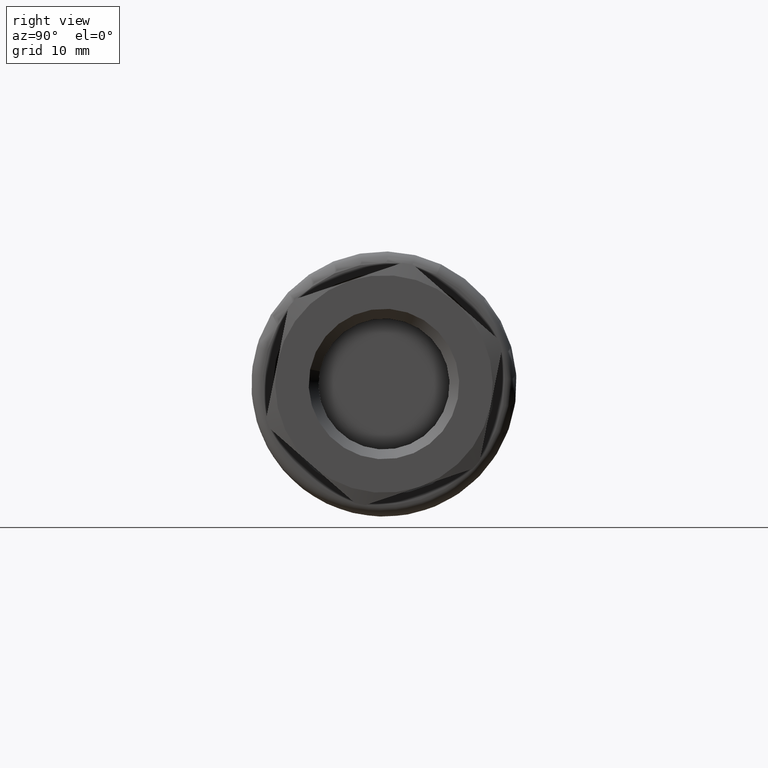
[diagram: clean part render]
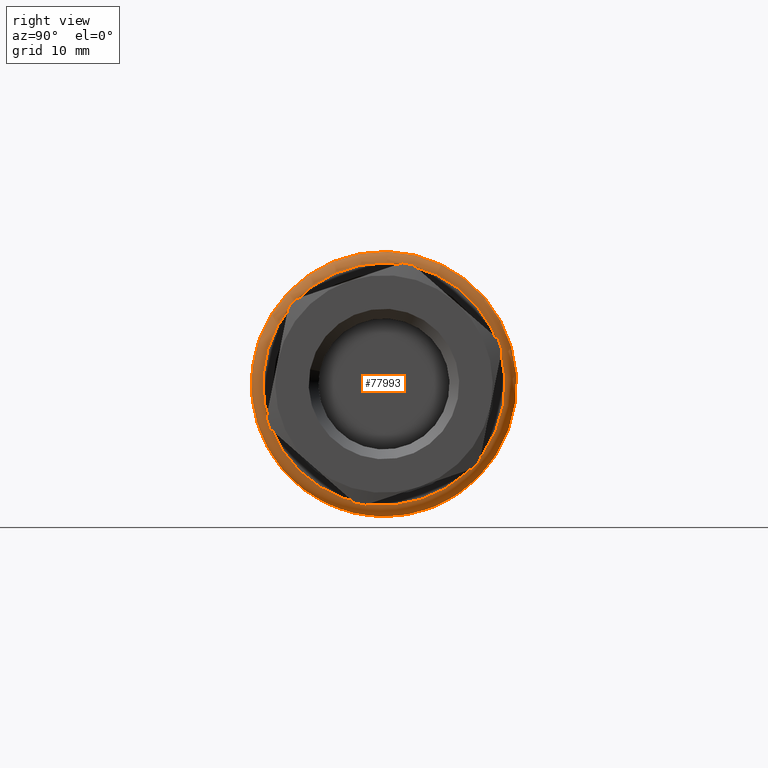
[diagram: same view with one face highlighted and labeled with its STEP entity id]
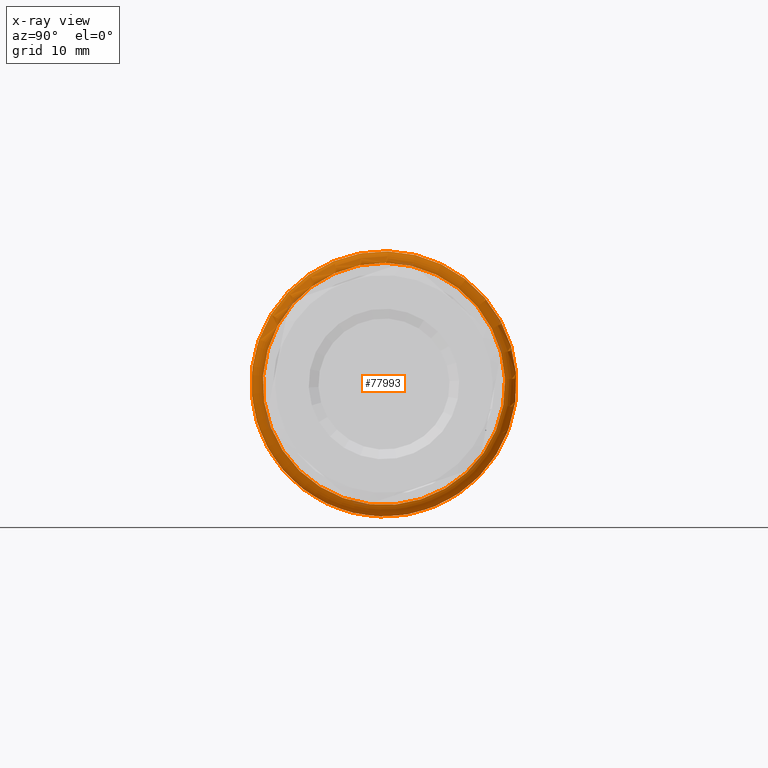
[diagram: x-ray of the same camera — body ghosted, the highlighted face saturated]
A machine part, right view. The second image highlights one B-rep face of the part: STEP entity #77993.
The next image is the same camera in x-ray: the body ghosted, the highlighted face saturated — about 2% of this face is hidden behind the body in this view.
In plain terms, the highlighted toroidal blend (fillet) surface has major radius 10.575 mm and minor (blend) radius 1 mm.
Its self-contained STEP definition (entity closure, byte-faithful):
#77966=CARTESIAN_POINT('',(27.690000000000001,3.876819E-015,-1.056117E-014));
#77967=DIRECTION('',(1.0,1.400079E-016,-3.814075E-016));
#77968=DIRECTION('',(-2.910721E-016,0.901820843741786,-0.432110131555432));
#77969=AXIS2_PLACEMENT_3D('',#77966,#77967,#77968);
#77970=TOROIDAL_SURFACE('',#77969,10.574999999999999,1.000000000000001);
#77971=CARTESIAN_POINT('',(28.690000000000005,4.569564641198702,9.536755422569376));
#77972=VERTEX_POINT('',#77971);
#77973=CARTESIAN_POINT('',(28.689999999999998,4.016827E-015,-1.094258E-014));
#77974=DIRECTION('',(1.0,-1.224870E-016,-2.556323E-016));
#77975=DIRECTION('',(2.834624E-016,0.432110131555432,0.901820843741786));
#77976=AXIS2_PLACEMENT_3D('',#77973,#77974,#77975);
#77977=CIRCLE('',#77976,10.574999999999999);
#77978=EDGE_CURVE('',#77972,#77972,#77977,.T.);
#77979=ORIENTED_EDGE('',*,*,#77978,.F.);
#77980=EDGE_LOOP('',(#77979));
#77981=FACE_OUTER_BOUND('',#77980,.T.);
#77982=CARTESIAN_POINT('',(27.690000000000001,5.001674772754136,10.438576266311163));
#77983=VERTEX_POINT('',#77982);
#77984=CARTESIAN_POINT('',(27.690000000000001,3.876819E-015,-1.056117E-014));
#77985=DIRECTION('',(1.0,-1.224870E-016,-2.556323E-016));
#77986=DIRECTION('',(2.834624E-016,0.432110131555432,0.901820843741786));
#77987=AXIS2_PLACEMENT_3D('',#77984,#77985,#77986);
#77988=CIRCLE('',#77987,11.575000000000001);
#77989=EDGE_CURVE('',#77983,#77983,#77988,.T.);
#77990=ORIENTED_EDGE('',*,*,#77989,.T.);
#77991=EDGE_LOOP('',(#77990));
#77992=FACE_BOUND('',#77991,.T.);
#77993=ADVANCED_FACE('',(#77981,#77992),#77970,.T.);